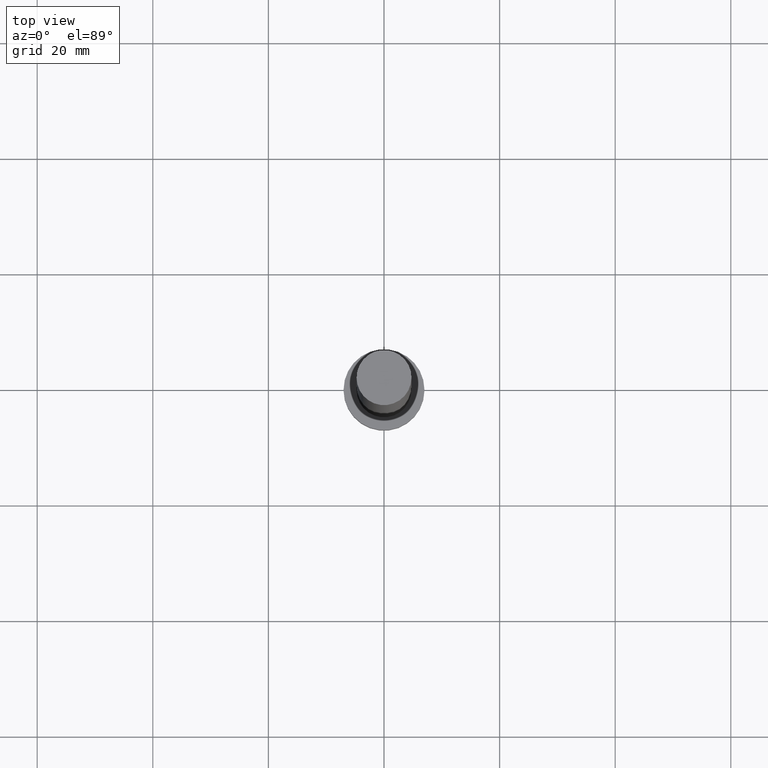
[diagram: clean part render]
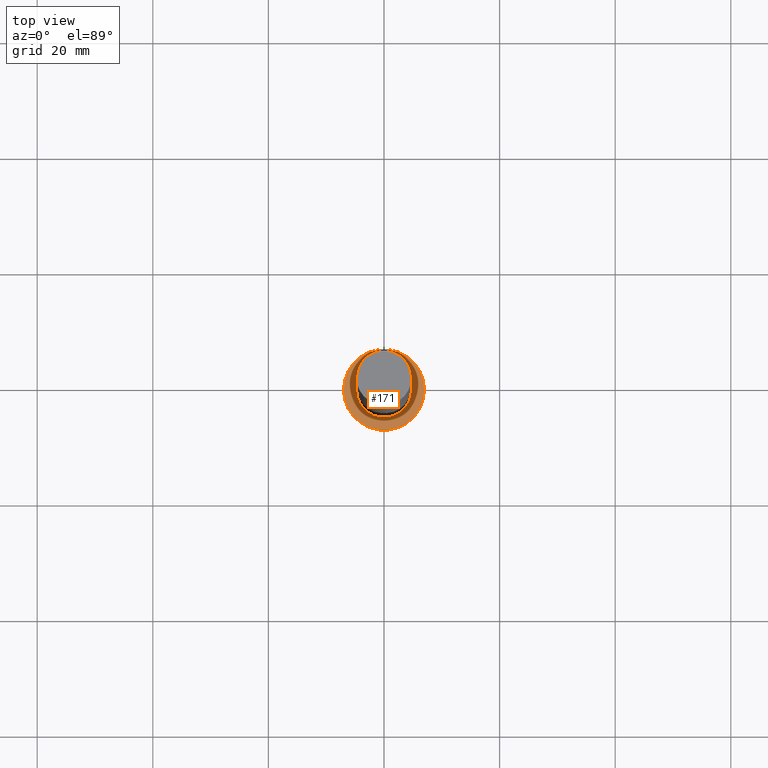
[diagram: same view with one face highlighted and labeled with its STEP entity id]
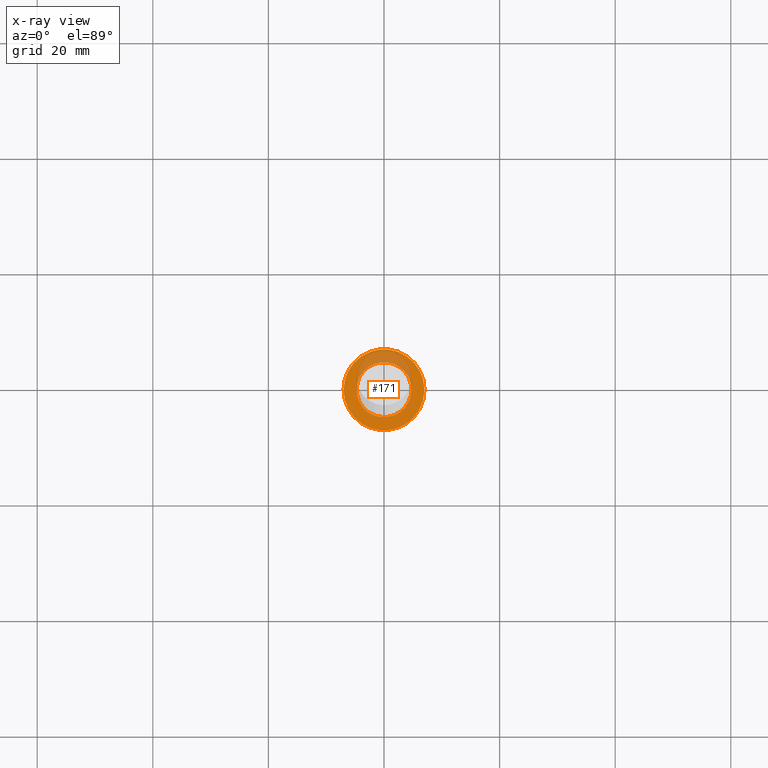
[diagram: x-ray of the same camera — body ghosted, the highlighted face saturated]
A machine part, top view. The second image highlights one B-rep face of the part: STEP entity #171.
The next image is the same camera in x-ray: the body ghosted, the highlighted face saturated — about 24% of this face is hidden behind the body in this view.
In plain terms, the highlighted planar face has unit normal (0, 0, 1).
Its self-contained STEP definition (entity closure, byte-faithful):
#2 = DIRECTION ( 'NONE',  ( 0.000000000000000000, 0.000000000000000000, 1.000000000000000000 ) ) ;
#7 = AXIS2_PLACEMENT_3D ( 'NONE', #196, #38, #137 ) ;
#12 = ORIENTED_EDGE ( 'NONE', *, *, #132, .F. ) ;
#23 = CARTESIAN_POINT ( 'NONE',  ( 7.000000000000000000, 8.572527594031473190E-16, 5.000000000000000000 ) ) ;
#27 = EDGE_LOOP ( 'NONE', ( #12, #177 ) ) ;
#38 = DIRECTION ( 'NONE',  ( 0.000000000000000000, 0.000000000000000000, 1.000000000000000000 ) ) ;
#46 = CIRCLE ( 'NONE', #208, 7.000000000000000000 ) ;
#50 = AXIS2_PLACEMENT_3D ( 'NONE', #59, #2, #232 ) ;
#59 = CARTESIAN_POINT ( 'NONE',  ( 0.000000000000000000, 0.000000000000000000, 5.000000000000000000 ) ) ;
#70 = DIRECTION ( 'NONE',  ( 0.000000000000000000, 0.000000000000000000, 1.000000000000000000 ) ) ;
#71 = VERTEX_POINT ( 'NONE', #252 ) ;
#79 = CARTESIAN_POINT ( 'NONE',  ( -4.750000000000000888, 0.000000000000000000, 5.000000000000000000 ) ) ;
#80 = CIRCLE ( 'NONE', #50, 7.000000000000000000 ) ;
#87 = CARTESIAN_POINT ( 'NONE',  ( 0.000000000000000000, 0.000000000000000000, 5.000000000000000000 ) ) ;
#91 = AXIS2_PLACEMENT_3D ( 'NONE', #119, #192, #236 ) ;
#97 = EDGE_CURVE ( 'NONE', #224, #182, #46, .T. ) ;
#100 = CIRCLE ( 'NONE', #244, 4.750000000000000888 ) ;
#101 = PLANE ( 'NONE',  #91 ) ;
#114 = CARTESIAN_POINT ( 'NONE',  ( -7.000000000000000000, 0.000000000000000000, 5.000000000000000000 ) ) ;
#119 = CARTESIAN_POINT ( 'NONE',  ( 0.000000000000000000, 0.000000000000000000, 5.000000000000000000 ) ) ;
#132 = EDGE_CURVE ( 'NONE', #178, #71, #100, .T. ) ;
#137 = DIRECTION ( 'NONE',  ( 1.000000000000000000, 0.000000000000000000, 0.000000000000000000 ) ) ;
#141 = DIRECTION ( 'NONE',  ( 0.000000000000000000, 0.000000000000000000, 1.000000000000000000 ) ) ;
#153 = FACE_BOUND ( 'NONE', #27, .T. ) ;
#162 = DIRECTION ( 'NONE',  ( 1.000000000000000000, 0.000000000000000000, 0.000000000000000000 ) ) ;
#171 = ADVANCED_FACE ( 'NONE', ( #153, #210 ), #101, .T. ) ;
#177 = ORIENTED_EDGE ( 'NONE', *, *, #200, .F. ) ;
#178 = VERTEX_POINT ( 'NONE', #79 ) ;
#182 = VERTEX_POINT ( 'NONE', #114 ) ;
#192 = DIRECTION ( 'NONE',  ( 0.000000000000000000, 0.000000000000000000, 1.000000000000000000 ) ) ;
#195 = EDGE_CURVE ( 'NONE', #182, #224, #80, .T. ) ;
#196 = CARTESIAN_POINT ( 'NONE',  ( 0.000000000000000000, 0.000000000000000000, 5.000000000000000000 ) ) ;
#200 = EDGE_CURVE ( 'NONE', #71, #178, #242, .T. ) ;
#208 = AXIS2_PLACEMENT_3D ( 'NONE', #254, #70, #162 ) ;
#210 = FACE_OUTER_BOUND ( 'NONE', #247, .T. ) ;
#222 = ORIENTED_EDGE ( 'NONE', *, *, #195, .T. ) ;
#223 = DIRECTION ( 'NONE',  ( 1.000000000000000000, 0.000000000000000000, 0.000000000000000000 ) ) ;
#224 = VERTEX_POINT ( 'NONE', #23 ) ;
#232 = DIRECTION ( 'NONE',  ( 1.000000000000000000, 0.000000000000000000, 0.000000000000000000 ) ) ;
#236 = DIRECTION ( 'NONE',  ( 1.000000000000000000, 0.000000000000000000, -0.000000000000000000 ) ) ;
#242 = CIRCLE ( 'NONE', #7, 4.750000000000000888 ) ;
#244 = AXIS2_PLACEMENT_3D ( 'NONE', #87, #141, #223 ) ;
#246 = ORIENTED_EDGE ( 'NONE', *, *, #97, .T. ) ;
#247 = EDGE_LOOP ( 'NONE', ( #222, #246 ) ) ;
#252 = CARTESIAN_POINT ( 'NONE',  ( 4.750000000000000888, 5.817072295949928412E-16, 5.000000000000000000 ) ) ;
#254 = CARTESIAN_POINT ( 'NONE',  ( 0.000000000000000000, 0.000000000000000000, 5.000000000000000000 ) ) ;